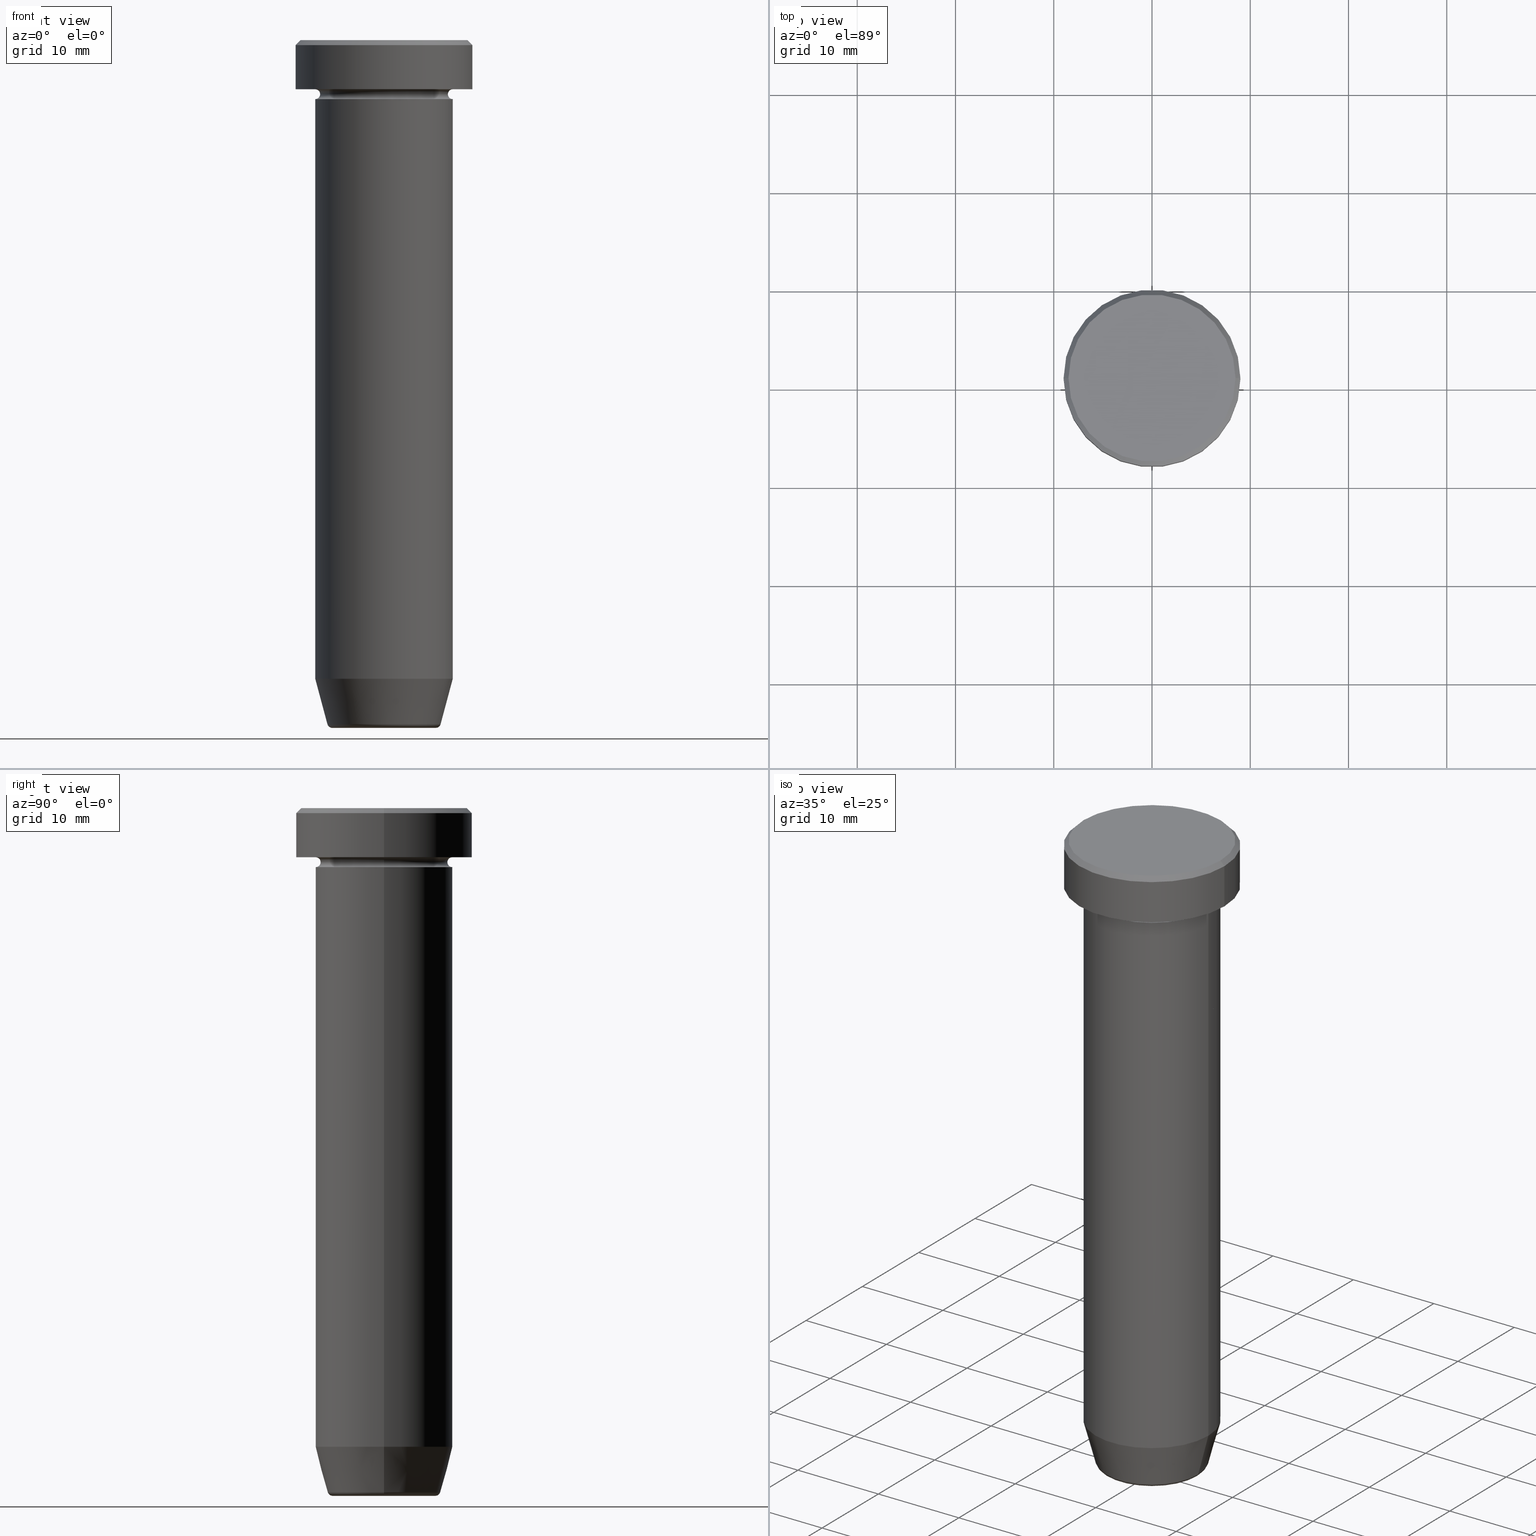
[diagram: canonical four-view strip — front | top / right | iso, engineering-drawing reading convention]
A machine part, canonical four-view strip (front | top / right | iso — engineering-drawing reading convention). The complete STEP part file that produces these views, byte-faithful:
ISO-10303-21;
HEADER;
FILE_DESCRIPTION (( 'STEP AP203' ),
    '1' );
FILE_NAME ('949f.STEP',
    '2024-01-02T23:13:45',
    ( '' ),
    ( '' ),
    'SwSTEP 2.0',
    'SolidWorks 2019',
    '' );
FILE_SCHEMA (( 'CONFIG_CONTROL_DESIGN' ));
ENDSEC;

DATA;
#1 = CIRCLE ( 'NONE', #47, 0.5000000000000004441 ) ;
#2 = COORDINATED_UNIVERSAL_TIME_OFFSET ( 1, 0, .AHEAD. ) ;
#3 = DIRECTION ( 'NONE',  ( -1.000000000000000000, 1.224646799147351482E-16, 0.000000000000000000 ) ) ;
#4 = CIRCLE ( 'NONE', #204, 7.000000000000000000 ) ;
#5 = AXIS2_PLACEMENT_3D ( 'NONE', #580, #203, #309 ) ;
#6 = CALENDAR_DATE ( 2024, 3, 1 ) ;
#7 = CARTESIAN_POINT ( 'NONE',  ( 0.000000000000000000, 0.000000000000000000, 0.000000000000000000 ) ) ;
#8 = DIRECTION ( 'NONE',  ( -1.000000000000000000, 1.224646799147351482E-16, 0.000000000000000000 ) ) ;
#9 = ADVANCED_FACE ( 'NONE', ( #128 ), #116, .F. ) ;
#10 = DIRECTION ( 'NONE',  ( -1.000000000000000000, 0.000000000000000000, 0.000000000000000000 ) ) ;
#11 = EDGE_LOOP ( 'NONE', ( #375, #185 ) ) ;
#12 = FACE_OUTER_BOUND ( 'NONE', #430, .T. ) ;
#13 = FACE_OUTER_BOUND ( 'NONE', #91, .T. ) ;
#14 = FACE_OUTER_BOUND ( 'NONE', #371, .T. ) ;
#15 = EDGE_CURVE ( 'NONE', #255, #281, #354, .T. ) ;
#16 = DIRECTION ( 'NONE',  ( 0.000000000000000000, 0.000000000000000000, -1.000000000000000000 ) ) ;
#17 = ORIENTED_EDGE ( 'NONE', *, *, #154, .F. ) ;
#18 = COORDINATED_UNIVERSAL_TIME_OFFSET ( 1, 0, .AHEAD. ) ;
#19 = TOROIDAL_SURFACE ( 'NONE', #407, 5.276590543854903004, 0.5000000000000000000 ) ;
#20 = DIRECTION ( 'NONE',  ( -0.000000000000000000, -0.000000000000000000, 1.000000000000000000 ) ) ;
#21 = AXIS2_PLACEMENT_3D ( 'NONE', #344, #212, #73 ) ;
#22 = VERTEX_POINT ( 'NONE', #125 ) ;
#23 = DIRECTION ( 'NONE',  ( -0.2588190451025210170, 3.169619151431768639E-17, 0.9659258262890680902 ) ) ;
#24 = PERSON_AND_ORGANIZATION_ROLE ( 'creator' ) ;
#25 = CYLINDRICAL_SURFACE ( 'NONE', #307, 7.000000000000000000 ) ;
#26 = ORIENTED_EDGE ( 'NONE', *, *, #546, .T. ) ;
#27 = FACE_OUTER_BOUND ( 'NONE', #233, .T. ) ;
#28 = CC_DESIGN_PERSON_AND_ORGANIZATION_ASSIGNMENT ( #165, #24, ( #497 ) ) ;
#29 = EDGE_LOOP ( 'NONE', ( #279, #577, #261, #530 ) ) ;
#30 = CARTESIAN_POINT ( 'NONE',  ( 0.000000000000000000, 0.000000000000000000, 0.000000000000000000 ) ) ;
#31 = CIRCLE ( 'NONE', #121, 9.000000000000000000 ) ;
#32 = APPROVAL_PERSON_ORGANIZATION ( #112, #468, #265 ) ;
#33 = ORIENTED_EDGE ( 'NONE', *, *, #262, .T. ) ;
#34 = ORIENTED_EDGE ( 'NONE', *, *, #367, .F. ) ;
#35 = FACE_OUTER_BOUND ( 'NONE', #11, .T. ) ;
#36 = VERTEX_POINT ( 'NONE', #312 ) ;
#37 = VECTOR ( 'NONE', #297, 1000.000000000000114 ) ;
#38 = DIRECTION ( 'NONE',  ( -0.000000000000000000, -0.000000000000000000, 1.000000000000000000 ) ) ;
#39 = VERTEX_POINT ( 'NONE', #586 ) ;
#40 = CARTESIAN_POINT ( 'NONE',  ( 0.000000000000000000, 0.000000000000000000, -69.62940952255127058 ) ) ;
#41 = EDGE_LOOP ( 'NONE', ( #94, #365, #350, #33 ) ) ;
#42 = DIRECTION ( 'NONE',  ( 1.224646799147353207E-16, 1.000000000000000000, 0.000000000000000000 ) ) ;
#43 = ORIENTED_EDGE ( 'NONE', *, *, #538, .T. ) ;
#44 = CC_DESIGN_DATE_AND_TIME_ASSIGNMENT ( #147, #97, ( #340 ) ) ;
#45 = DIRECTION ( 'NONE',  ( 0.000000000000000000, 0.000000000000000000, -1.000000000000000000 ) ) ;
#46 = CIRCLE ( 'NONE', #172, 7.000000000000000000 ) ;
#47 = AXIS2_PLACEMENT_3D ( 'NONE', #269, #141, #226 ) ;
#48 =( NAMED_UNIT ( * ) PLANE_ANGLE_UNIT ( ) SI_UNIT ( $, .RADIAN. ) );
#49 = LINE ( 'NONE', #473, #549 ) ;
#50 = COORDINATED_UNIVERSAL_TIME_OFFSET ( 1, 0, .AHEAD. ) ;
#51 = CARTESIAN_POINT ( 'NONE',  ( 9.000000000000000000, 0.000000000000000000, -0.4999999999999952260 ) ) ;
#52 = CALENDAR_DATE ( 2024, 3, 1 ) ;
#53 = DIRECTION ( 'NONE',  ( -0.000000000000000000, -0.000000000000000000, 1.000000000000000000 ) ) ;
#54 = AXIS2_PLACEMENT_3D ( 'NONE', #192, #566, #150 ) ;
#55 =( LENGTH_UNIT ( ) NAMED_UNIT ( * ) SI_UNIT ( .MILLI., .METRE. ) );
#56 = DIRECTION ( 'NONE',  ( -0.000000000000000000, -0.000000000000000000, 1.000000000000000000 ) ) ;
#57 = PERSON_AND_ORGANIZATION ( #164, #143 ) ;
#58 = LINE ( 'NONE', #484, #463 ) ;
#59 = CARTESIAN_POINT ( 'NONE',  ( 0.000000000000000000, 0.000000000000000000, -65.00000000000000000 ) ) ;
#60 = DIRECTION ( 'NONE',  ( 1.000000000000000000, 0.000000000000000000, 0.000000000000000000 ) ) ;
#61 = DIRECTION ( 'NONE',  ( 1.000000000000000000, 0.000000000000000000, 0.000000000000000000 ) ) ;
#62 = VERTEX_POINT ( 'NONE', #529 ) ;
#63 = PERSON_AND_ORGANIZATION ( #164, #143 ) ;
#64 = DIRECTION ( 'NONE',  ( -0.7071067811865474617, 0.000000000000000000, -0.7071067811865474617 ) ) ;
#65 = TOROIDAL_SURFACE ( 'NONE', #356, 7.000000000000000888, 0.5000000000000000000 ) ;
#66 = ORIENTED_EDGE ( 'NONE', *, *, #188, .F. ) ;
#67 = ORIENTED_EDGE ( 'NONE', *, *, #457, .F. ) ;
#68 = AXIS2_PLACEMENT_3D ( 'NONE', #227, #272, #415 ) ;
#69 = DIRECTION ( 'NONE',  ( 1.000000000000000000, 0.000000000000000000, 0.000000000000000000 ) ) ;
#70 = AXIS2_PLACEMENT_3D ( 'NONE', #230, #321, #299 ) ;
#71 = ORIENTED_EDGE ( 'NONE', *, *, #191, .T. ) ;
#72 = LOCAL_TIME ( 0, 13, 45.00000000000000000, #397 ) ;
#73 = DIRECTION ( 'NONE',  ( 1.000000000000000000, 0.000000000000000000, 0.000000000000000000 ) ) ;
#74 = CARTESIAN_POINT ( 'NONE',  ( -5.276590543854903004, 6.461959719943098517E-16, -69.50000000000000000 ) ) ;
#75 = ORIENTED_EDGE ( 'NONE', *, *, #131, .T. ) ;
#76 = DESIGN_CONTEXT ( 'detailed design', #263, 'design' ) ;
#77 = ADVANCED_FACE ( 'NONE', ( #493 ), #65, .F. ) ;
#78 = MANIFOLD_SOLID_BREP ( 'Zaoblit4', #300 ) ;
#79 = CARTESIAN_POINT ( 'NONE',  ( 7.000000000000000000, 0.000000000000000000, -17.50000000000000000 ) ) ;
#80 = EDGE_LOOP ( 'NONE', ( #138, #168, #75, #86 ) ) ;
#81 = DIRECTION ( 'NONE',  ( 1.000000000000000000, 0.000000000000000000, 0.000000000000000000 ) ) ;
#82 = EDGE_CURVE ( 'NONE', #464, #324, #521, .T. ) ;
#83 = TOROIDAL_SURFACE ( 'NONE', #448, 7.000000000000000888, 0.5000000000000000000 ) ;
#84 = CC_DESIGN_DATE_AND_TIME_ASSIGNMENT ( #392, #254, ( #550 ) ) ;
#85 = DIRECTION ( 'NONE',  ( -0.000000000000000000, -0.000000000000000000, 1.000000000000000000 ) ) ;
#86 = ORIENTED_EDGE ( 'NONE', *, *, #239, .F. ) ;
#87 = CARTESIAN_POINT ( 'NONE',  ( 7.000000000000000000, 0.000000000000000000, 0.000000000000000000 ) ) ;
#88 = LINE ( 'NONE', #256, #181 ) ;
#89 = DIRECTION ( 'NONE',  ( -0.000000000000000000, -0.000000000000000000, 1.000000000000000000 ) ) ;
#90 = DIRECTION ( 'NONE',  ( -0.000000000000000000, -0.000000000000000000, 1.000000000000000000 ) ) ;
#91 = EDGE_LOOP ( 'NONE', ( #357, #353 ) ) ;
#92 = DIRECTION ( 'NONE',  ( 0.000000000000000000, 0.000000000000000000, -1.000000000000000000 ) ) ;
#93 = CARTESIAN_POINT ( 'NONE',  ( 8.500000000000003553, 1.071565949253934321E-15, 0.000000000000000000 ) ) ;
#94 = ORIENTED_EDGE ( 'NONE', *, *, #420, .F. ) ;
#95 = AXIS2_PLACEMENT_3D ( 'NONE', #251, #56, #245 ) ;
#96 = EDGE_LOOP ( 'NONE', ( #411, #378 ) ) ;
#97 = DATE_TIME_ROLE ( 'creation_date' ) ;
#98 = AXIS2_PLACEMENT_3D ( 'NONE', #542, #313, #494 ) ;
#99 = CARTESIAN_POINT ( 'NONE',  ( 8.500000000000003553, 1.040949779275250731E-15, 0.000000000000000000 ) ) ;
#100 = CARTESIAN_POINT ( 'NONE',  ( -7.000000000000000000, 8.572527594031473190E-16, -17.50000000000000000 ) ) ;
#101 = EDGE_CURVE ( 'NONE', #555, #22, #113, .T. ) ;
#102 = MECHANICAL_CONTEXT ( 'NONE', #286, 'mechanical' ) ;
#103 = FACE_OUTER_BOUND ( 'NONE', #169, .T. ) ;
#104 = EDGE_CURVE ( 'NONE', #555, #370, #260, .T. ) ;
#105 = DIRECTION ( 'NONE',  ( -0.000000000000000000, -0.000000000000000000, 1.000000000000000000 ) ) ;
#106 = DIRECTION ( 'NONE',  ( 0.7071067811865474617, 8.659560562354932858E-17, -0.7071067811865474617 ) ) ;
#107 = CIRCLE ( 'NONE', #342, 7.000000000000000000 ) ;
#108 = CIRCLE ( 'NONE', #189, 0.5000000000000004441 ) ;
#109 = PERSON_AND_ORGANIZATION ( #164, #143 ) ;
#110 = DIRECTION ( 'NONE',  ( 1.000000000000000000, 0.000000000000000000, 0.000000000000000000 ) ) ;
#111 = ORIENTED_EDGE ( 'NONE', *, *, #538, .F. ) ;
#112 = PERSON_AND_ORGANIZATION ( #164, #143 ) ;
#113 = LINE ( 'NONE', #588, #37 ) ;
#114 = SECURITY_CLASSIFICATION_LEVEL ( 'unclassified' ) ;
#115 = CARTESIAN_POINT ( 'NONE',  ( -5.759553456999434218, 7.812973149831952759E-16, -69.62940952255127058 ) ) ;
#116 = PLANE ( 'NONE',  #186 ) ;
#117 = CYLINDRICAL_SURFACE ( 'NONE', #496, 7.000000000000000000 ) ;
#118 = ORIENTED_EDGE ( 'NONE', *, *, #216, .T. ) ;
#119 = PRODUCT ( '949f', '949f', '', ( #102 ) ) ;
#120 = CARTESIAN_POINT ( 'NONE',  ( 0.000000000000000000, 0.000000000000000000, 0.000000000000000000 ) ) ;
#121 = AXIS2_PLACEMENT_3D ( 'NONE', #552, #466, #134 ) ;
#122 = ORIENTED_EDGE ( 'NONE', *, *, #104, .T. ) ;
#123 = LOCAL_TIME ( 0, 13, 45.00000000000000000, #50 ) ;
#124 = FACE_OUTER_BOUND ( 'NONE', #396, .T. ) ;
#125 = CARTESIAN_POINT ( 'NONE',  ( 7.000000000000000000, 0.000000000000000000, -65.00000000000000000 ) ) ;
#126 = PERSON_AND_ORGANIZATION_ROLE ( 'classification_officer' ) ;
#127 = CC_DESIGN_PERSON_AND_ORGANIZATION_ASSIGNMENT ( #63, #358, ( #497 ) ) ;
#128 = FACE_OUTER_BOUND ( 'NONE', #271, .T. ) ;
#129 = CARTESIAN_POINT ( 'NONE',  ( 0.000000000000000000, 0.000000000000000000, 0.000000000000000000 ) ) ;
#130 = ORIENTED_EDGE ( 'NONE', *, *, #137, .F. ) ;
#131 = EDGE_CURVE ( 'NONE', #424, #347, #512, .T. ) ;
#132 = AXIS2_PLACEMENT_3D ( 'NONE', #519, #53, #243 ) ;
#133 = ORIENTED_EDGE ( 'NONE', *, *, #188, .T. ) ;
#134 = DIRECTION ( 'NONE',  ( 1.000000000000000000, 0.000000000000000000, 0.000000000000000000 ) ) ;
#135 = ADVANCED_FACE ( 'NONE', ( #323 ), #333, .T. ) ;
#136 = CARTESIAN_POINT ( 'NONE',  ( 0.000000000000000000, 0.000000000000000000, -69.62940952255127058 ) ) ;
#137 = EDGE_CURVE ( 'NONE', #330, #36, #589, .T. ) ;
#138 = ORIENTED_EDGE ( 'NONE', *, *, #304, .F. ) ;
#139 = ADVANCED_FACE ( 'NONE', ( #320 ), #587, .T. ) ;
#140 = EDGE_LOOP ( 'NONE', ( #535, #133, #509, #384 ) ) ;
#141 = DIRECTION ( 'NONE',  ( 0.000000000000000000, -1.000000000000000000, 0.000000000000000000 ) ) ;
#142 = CIRCLE ( 'NONE', #438, 8.500000000000003553 ) ;
#143 = ORGANIZATION ( 'NEUR�EN�', 'NEUR�EN�', '' ) ;
#144 = ADVANCED_FACE ( 'NONE', ( #35 ), #500, .T. ) ;
#145 = FACE_OUTER_BOUND ( 'NONE', #485, .T. ) ;
#146 = CARTESIAN_POINT ( 'NONE',  ( 0.000000000000000000, 0.000000000000000000, -6.000000000000000000 ) ) ;
#147 = DATE_AND_TIME ( #562, #388 ) ;
#148 = CIRCLE ( 'NONE', #305, 5.759553456999434218 ) ;
#149 = CIRCLE ( 'NONE', #527, 7.000000000000000000 ) ;
#150 = DIRECTION ( 'NONE',  ( 1.000000000000000000, 0.000000000000000000, 0.000000000000000000 ) ) ;
#151 = CARTESIAN_POINT ( 'NONE',  ( -7.000000000000000888, 8.572527594031474176E-16, -5.500000000000000000 ) ) ;
#152 = APPROVAL_DATE_TIME ( #567, #235 ) ;
#153 = DIRECTION ( 'NONE',  ( 1.000000000000000000, 0.000000000000000000, 0.000000000000000000 ) ) ;
#154 = EDGE_CURVE ( 'NONE', #22, #573, #361, .T. ) ;
#155 = EDGE_CURVE ( 'NONE', #62, #180, #107, .T. ) ;
#156 = DIRECTION ( 'NONE',  ( -1.000000000000000000, 0.000000000000000000, 0.000000000000000000 ) ) ;
#157 = CARTESIAN_POINT ( 'NONE',  ( 6.500000000000000888, 0.000000000000000000, -5.500000000000000000 ) ) ;
#158 = DIRECTION ( 'NONE',  ( -0.000000000000000000, -0.000000000000000000, 1.000000000000000000 ) ) ;
#159 = CIRCLE ( 'NONE', #469, 6.500000000000000888 ) ;
#160 = AXIS2_PLACEMENT_3D ( 'NONE', #482, #523, #60 ) ;
#161 = EDGE_CURVE ( 'NONE', #596, #504, #159, .T. ) ;
#162 = EDGE_LOOP ( 'NONE', ( #467, #495, #202, #34 ) ) ;
#163 = CARTESIAN_POINT ( 'NONE',  ( 7.000000000000000000, 0.000000000000000000, -6.000000000000000000 ) ) ;
#164 = PERSON ( 'NEUR�EN�', 'NEUR�EN�', 'NEUR�EN�', ('NEUR�EN�'), ('NEUR�EN�'), ('NEUR�EN�') ) ;
#165 = PERSON_AND_ORGANIZATION ( #164, #143 ) ;
#166 = CARTESIAN_POINT ( 'NONE',  ( 0.000000000000000000, 0.000000000000000000, 0.000000000000000000 ) ) ;
#167 = CC_DESIGN_PERSON_AND_ORGANIZATION_ASSIGNMENT ( #109, #520, ( #119 ) ) ;
#168 = ORIENTED_EDGE ( 'NONE', *, *, #420, .T. ) ;
#169 = EDGE_LOOP ( 'NONE', ( #426, #178, #328, #489 ) ) ;
#170 = ORIENTED_EDGE ( 'NONE', *, *, #348, .F. ) ;
#171 = CARTESIAN_POINT ( 'NONE',  ( 0.000000000000000000, 0.000000000000000000, -5.500000000000000000 ) ) ;
#172 = AXIS2_PLACEMENT_3D ( 'NONE', #146, #334, #285 ) ;
#173 = DIRECTION ( 'NONE',  ( -0.000000000000000000, -0.000000000000000000, 1.000000000000000000 ) ) ;
#174 = ORIENTED_EDGE ( 'NONE', *, *, #268, .F. ) ;
#175 = CARTESIAN_POINT ( 'NONE',  ( 7.000000000000000888, 8.572527594031474176E-16, -5.500000000000000000 ) ) ;
#176 = CARTESIAN_POINT ( 'NONE',  ( 0.000000000000000000, 0.000000000000000000, -17.50000000000000000 ) ) ;
#177 = DIRECTION ( 'NONE',  ( 1.000000000000000000, 0.000000000000000000, 0.000000000000000000 ) ) ;
#178 = ORIENTED_EDGE ( 'NONE', *, *, #383, .T. ) ;
#179 = DIRECTION ( 'NONE',  ( -0.000000000000000000, -0.000000000000000000, 1.000000000000000000 ) ) ;
#180 = VERTEX_POINT ( 'NONE', #79 ) ;
#181 = VECTOR ( 'NONE', #23, 1000.000000000000114 ) ;
#182 = DIRECTION ( 'NONE',  ( 0.000000000000000000, 0.000000000000000000, -1.000000000000000000 ) ) ;
#183 = ORIENTED_EDGE ( 'NONE', *, *, #216, .F. ) ;
#184 = DIRECTION ( 'NONE',  ( -1.000000000000000000, 0.000000000000000000, 0.000000000000000000 ) ) ;
#185 = ORIENTED_EDGE ( 'NONE', *, *, #155, .F. ) ;
#186 = AXIS2_PLACEMENT_3D ( 'NONE', #215, #582, #81 ) ;
#187 = CARTESIAN_POINT ( 'NONE',  ( 0.000000000000000000, 9.000000000000000000, -5.000000000000000000 ) ) ;
#188 = EDGE_CURVE ( 'NONE', #596, #330, #564, .T. ) ;
#189 = AXIS2_PLACEMENT_3D ( 'NONE', #151, #42, #3 ) ;
#190 = APPROVAL ( #385, 'NEUR�EN�' ) ;
#191 = EDGE_CURVE ( 'NONE', #422, #39, #373, .T. ) ;
#192 = CARTESIAN_POINT ( 'NONE',  ( 0.000000000000000000, 0.000000000000000000, 0.000000000000000000 ) ) ;
#193 = CIRCLE ( 'NONE', #393, 8.500000000000003553 ) ;
#194 = CONICAL_SURFACE ( 'NONE', #132, 5.660254037844383745, 0.2617993877991497409 ) ;
#195 = CC_DESIGN_APPROVAL ( #468, ( #550 ) ) ;
#196 =( NAMED_UNIT ( * ) SI_UNIT ( $, .STERADIAN. ) SOLID_ANGLE_UNIT ( ) );
#197 = CARTESIAN_POINT ( 'NONE',  ( 0.000000000000000000, 0.000000000000000000, 0.000000000000000000 ) ) ;
#198 = CARTESIAN_POINT ( 'NONE',  ( -7.000000000000000000, 8.572527594031473190E-16, -65.00000000000000000 ) ) ;
#199 = DIRECTION ( 'NONE',  ( 0.000000000000000000, -0.000000000000000000, 1.000000000000000000 ) ) ;
#200 = FACE_OUTER_BOUND ( 'NONE', #461, .T. ) ;
#201 = AXIS2_PLACEMENT_3D ( 'NONE', #176, #224, #412 ) ;
#202 = ORIENTED_EDGE ( 'NONE', *, *, #262, .F. ) ;
#203 = DIRECTION ( 'NONE',  ( 0.000000000000000000, 0.000000000000000000, -1.000000000000000000 ) ) ;
#204 = AXIS2_PLACEMENT_3D ( 'NONE', #59, #568, #153 ) ;
#205 = AXIS2_PLACEMENT_3D ( 'NONE', #475, #105, #61 ) ;
#206 = PRODUCT_RELATED_PRODUCT_CATEGORY ( 'detail', '', ( #119 ) ) ;
#207 = ORIENTED_EDGE ( 'NONE', *, *, #161, .T. ) ;
#208 = FACE_OUTER_BOUND ( 'NONE', #162, .T. ) ;
#209 = ORIENTED_EDGE ( 'NONE', *, *, #82, .F. ) ;
#210 = CARTESIAN_POINT ( 'NONE',  ( 0.000000000000000000, 0.000000000000000000, -5.500000000000000000 ) ) ;
#211 = FACE_OUTER_BOUND ( 'NONE', #214, .T. ) ;
#212 = DIRECTION ( 'NONE',  ( 0.000000000000000000, 0.000000000000000000, -1.000000000000000000 ) ) ;
#213 = DIRECTION ( 'NONE',  ( -0.000000000000000000, -0.000000000000000000, 1.000000000000000000 ) ) ;
#214 = EDGE_LOOP ( 'NONE', ( #170, #310, #43, #26 ) ) ;
#215 = CARTESIAN_POINT ( 'NONE',  ( 0.000000000000000000, 2.449293598294707302E-15, -70.00000000000000000 ) ) ;
#216 = EDGE_CURVE ( 'NONE', #399, #301, #193, .T. ) ;
#217 = FACE_BOUND ( 'NONE', #96, .T. ) ;
#218 = CALENDAR_DATE ( 2024, 3, 1 ) ;
#219 = VECTOR ( 'NONE', #173, 1000.000000000000000 ) ;
#220 = DIRECTION ( 'NONE',  ( -0.000000000000000000, -0.000000000000000000, 1.000000000000000000 ) ) ;
#221 = CC_DESIGN_PERSON_AND_ORGANIZATION_ASSIGNMENT ( #576, #126, ( #550 ) ) ;
#222 = CARTESIAN_POINT ( 'NONE',  ( 0.000000000000000000, 7.000000000000000000, -17.50000000000000000 ) ) ;
#223 = CARTESIAN_POINT ( 'NONE',  ( 9.000000000000000000, 0.000000000000000000, 0.000000000000000000 ) ) ;
#224 = DIRECTION ( 'NONE',  ( -0.000000000000000000, -0.000000000000000000, 1.000000000000000000 ) ) ;
#225 = DIRECTION ( 'NONE',  ( -0.000000000000000000, -0.000000000000000000, 1.000000000000000000 ) ) ;
#226 = DIRECTION ( 'NONE',  ( 0.000000000000000000, 0.000000000000000000, -1.000000000000000000 ) ) ;
#227 = CARTESIAN_POINT ( 'NONE',  ( 0.000000000000000000, 0.000000000000000000, -5.500000000000000000 ) ) ;
#228 = ORIENTED_EDGE ( 'NONE', *, *, #314, .T. ) ;
#229 = VECTOR ( 'NONE', #525, 1000.000000000000000 ) ;
#230 = CARTESIAN_POINT ( 'NONE',  ( 0.000000000000000000, 0.000000000000000000, 0.000000000000000000 ) ) ;
#231 = APPROVAL_PERSON_ORGANIZATION ( #436, #235, #471 ) ;
#232 = CARTESIAN_POINT ( 'NONE',  ( 0.000000000000000000, 0.000000000000000000, -5.500000000000000000 ) ) ;
#233 = EDGE_LOOP ( 'NONE', ( #551, #303, #502, #547 ) ) ;
#234 = AXIS2_PLACEMENT_3D ( 'NONE', #592, #38, #372 ) ;
#235 = APPROVAL ( #282, 'NEUR�EN�' ) ;
#236 = AXIS2_PLACEMENT_3D ( 'NONE', #175, #454, #369 ) ;
#237 = CONICAL_SURFACE ( 'NONE', #387, 8.500000000000003553, 0.7853981633974482790 ) ;
#238 = ADVANCED_FACE ( 'NONE', ( #584 ), #548, .F. ) ;
#239 = EDGE_CURVE ( 'NONE', #596, #347, #437, .T. ) ;
#240 = CARTESIAN_POINT ( 'NONE',  ( 5.759553456999434218, 0.000000000000000000, -69.62940952255127058 ) ) ;
#241 = PERSON_AND_ORGANIZATION_ROLE ( 'creator' ) ;
#242 = AXIS2_PLACEMENT_3D ( 'NONE', #74, #339, #8 ) ;
#243 = DIRECTION ( 'NONE',  ( 1.000000000000000000, 0.000000000000000000, 0.000000000000000000 ) ) ;
#244 = LINE ( 'NONE', #99, #565 ) ;
#245 = DIRECTION ( 'NONE',  ( -1.000000000000000000, 0.000000000000000000, 0.000000000000000000 ) ) ;
#246 = EDGE_CURVE ( 'NONE', #370, #555, #148, .T. ) ;
#247 = CARTESIAN_POINT ( 'NONE',  ( 0.000000000000000000, 0.000000000000000000, -69.50000000000000000 ) ) ;
#248 = DIRECTION ( 'NONE',  ( -0.000000000000000000, -0.000000000000000000, 1.000000000000000000 ) ) ;
#249 = APPROVAL_DATE_TIME ( #433, #190 ) ;
#250 = CARTESIAN_POINT ( 'NONE',  ( 0.000000000000000000, 0.000000000000000000, -17.50000000000000000 ) ) ;
#251 = CARTESIAN_POINT ( 'NONE',  ( 0.000000000000000000, 0.000000000000000000, -5.000000000000000000 ) ) ;
#252 = CARTESIAN_POINT ( 'NONE',  ( -7.000000000000000888, 0.000000000000000000, -5.500000000000000000 ) ) ;
#253 = DIRECTION ( 'NONE',  ( -0.000000000000000000, -0.000000000000000000, 1.000000000000000000 ) ) ;
#254 = DATE_TIME_ROLE ( 'classification_date' ) ;
#255 = VERTEX_POINT ( 'NONE', #505 ) ;
#256 = CARTESIAN_POINT ( 'NONE',  ( -5.660254037844383745, 6.931811989807006322E-16, -70.00000000000000000 ) ) ;
#257 = ORIENTED_EDGE ( 'NONE', *, *, #131, .F. ) ;
#258 = CYLINDRICAL_SURFACE ( 'NONE', #380, 7.000000000000000000 ) ;
#259 = ADVANCED_FACE ( 'NONE', ( #217, #145 ), #331, .T. ) ;
#260 = CIRCLE ( 'NONE', #425, 5.759553456999434218 ) ;
#261 = ORIENTED_EDGE ( 'NONE', *, *, #326, .T. ) ;
#262 = EDGE_CURVE ( 'NONE', #347, #424, #46, .T. ) ;
#263 = APPLICATION_CONTEXT ( 'configuration controlled 3d designs of mechanical parts and assemblies' ) ;
#264 = DIRECTION ( 'NONE',  ( 1.000000000000000000, 0.000000000000000000, 0.000000000000000000 ) ) ;
#265 = APPROVAL_ROLE ( '' ) ;
#266 = CIRCLE ( 'NONE', #507, 6.500000000000000888 ) ;
#267 = DIRECTION ( 'NONE',  ( -1.000000000000000000, 0.000000000000000000, 0.000000000000000000 ) ) ;
#268 = EDGE_CURVE ( 'NONE', #573, #22, #4, .T. ) ;
#269 = CARTESIAN_POINT ( 'NONE',  ( 5.276590543854903004, 0.000000000000000000, -69.50000000000000000 ) ) ;
#270 = CARTESIAN_POINT ( 'NONE',  ( 7.000000000000000888, 0.000000000000000000, -5.500000000000000000 ) ) ;
#271 = EDGE_LOOP ( 'NONE', ( #71, #594 ) ) ;
#272 = DIRECTION ( 'NONE',  ( -0.000000000000000000, -0.000000000000000000, 1.000000000000000000 ) ) ;
#273 = MANIFOLD_SOLID_BREP ( 'Zkosen�1', #288 ) ;
#274 = AXIS2_PLACEMENT_3D ( 'NONE', #187, #45, #431 ) ;
#275 = CIRCLE ( 'NONE', #417, 9.000000000000000000 ) ;
#276 = ORIENTED_EDGE ( 'NONE', *, *, #191, .F. ) ;
#277 = VECTOR ( 'NONE', #503, 1000.000000000000000 ) ;
#278 = ORIENTED_EDGE ( 'NONE', *, *, #418, .F. ) ;
#279 = ORIENTED_EDGE ( 'NONE', *, *, #572, .F. ) ;
#280 = DIRECTION ( 'NONE',  ( -0.000000000000000000, -0.000000000000000000, 1.000000000000000000 ) ) ;
#281 = VERTEX_POINT ( 'NONE', #522 ) ;
#282 = APPROVAL_STATUS ( 'not_yet_approved' ) ;
#283 = CIRCLE ( 'NONE', #95, 7.000000000000000888 ) ;
#284 = CIRCLE ( 'NONE', #21, 5.276590543854903004 ) ;
#285 = DIRECTION ( 'NONE',  ( 1.000000000000000000, 0.000000000000000000, 0.000000000000000000 ) ) ;
#286 = APPLICATION_CONTEXT ( 'configuration controlled 3d designs of mechanical parts and assemblies' ) ;
#287 = APPLICATION_PROTOCOL_DEFINITION ( 'international standard', 'config_control_design', 1994, #263 ) ;
#288 = CLOSED_SHELL ( 'NONE', ( #135, #77, #238, #338, #139, #144, #296, #517, #259, #563, #389, #306, #434 ) ) ;
#289 = CARTESIAN_POINT ( 'NONE',  ( -7.000000000000000000, 8.572527594031473190E-16, 0.000000000000000000 ) ) ;
#290 = EDGE_CURVE ( 'NONE', #36, #330, #283, .T. ) ;
#291 = AXIS2_PLACEMENT_3D ( 'NONE', #222, #182, #413 ) ;
#292 = TOROIDAL_SURFACE ( 'NONE', #343, 7.000000000000000888, 0.5000000000000000000 ) ;
#293 = DIRECTION ( 'NONE',  ( 1.000000000000000000, 0.000000000000000000, 0.000000000000000000 ) ) ;
#294 = CYLINDRICAL_SURFACE ( 'NONE', #537, 7.000000000000000000 ) ;
#295 = LINE ( 'NONE', #526, #429 ) ;
#296 = ADVANCED_FACE ( 'NONE', ( #14 ), #391, .T. ) ;
#297 = DIRECTION ( 'NONE',  ( 0.2588190451025210170, 0.000000000000000000, 0.9659258262890680902 ) ) ;
#298 = ADVANCED_FACE ( 'NONE', ( #103 ), #19, .T. ) ;
#299 = DIRECTION ( 'NONE',  ( 1.000000000000000000, 0.000000000000000000, 0.000000000000000000 ) ) ;
#300 = CLOSED_SHELL ( 'NONE', ( #298, #450, #322, #382, #432, #442, #9, #319 ) ) ;
#301 = VERTEX_POINT ( 'NONE', #400 ) ;
#302 = CARTESIAN_POINT ( 'NONE',  ( -9.000000000000000000, 1.102182119232617714E-15, -0.4999999999999952260 ) ) ;
#303 = ORIENTED_EDGE ( 'NONE', *, *, #457, .T. ) ;
#304 = EDGE_CURVE ( 'NONE', #504, #596, #266, .T. ) ;
#305 = AXIS2_PLACEMENT_3D ( 'NONE', #40, #421, #595 ) ;
#306 = ADVANCED_FACE ( 'NONE', ( #124 ), #292, .F. ) ;
#307 = AXIS2_PLACEMENT_3D ( 'NONE', #120, #539, #110 ) ;
#308 = FACE_OUTER_BOUND ( 'NONE', #458, .T. ) ;
#309 = DIRECTION ( 'NONE',  ( -1.000000000000000000, 0.000000000000000000, -0.000000000000000000 ) ) ;
#310 = ORIENTED_EDGE ( 'NONE', *, *, #15, .T. ) ;
#311 = CARTESIAN_POINT ( 'NONE',  ( 0.000000000000000000, 0.000000000000000000, -5.500000000000000000 ) ) ;
#312 = CARTESIAN_POINT ( 'NONE',  ( -7.000000000000000888, 0.000000000000000000, -4.999999999999999112 ) ) ;
#313 = DIRECTION ( 'NONE',  ( -0.000000000000000000, -0.000000000000000000, 1.000000000000000000 ) ) ;
#314 = EDGE_CURVE ( 'NONE', #377, #487, #336, .T. ) ;
#315 = DIRECTION ( 'NONE',  ( 1.000000000000000000, 0.000000000000000000, 0.000000000000000000 ) ) ;
#316 = DIRECTION ( 'NONE',  ( 1.000000000000000000, 0.000000000000000000, 0.000000000000000000 ) ) ;
#317 = AXIS2_PLACEMENT_3D ( 'NONE', #590, #92, #545 ) ;
#318 = AXIS2_PLACEMENT_3D ( 'NONE', #394, #213, #401 ) ;
#319 = ADVANCED_FACE ( 'NONE', ( #200 ), #560, .T. ) ;
#320 = FACE_OUTER_BOUND ( 'NONE', #379, .T. ) ;
#321 = DIRECTION ( 'NONE',  ( -0.000000000000000000, -0.000000000000000000, 1.000000000000000000 ) ) ;
#322 = ADVANCED_FACE ( 'NONE', ( #27 ), #258, .T. ) ;
#323 = FACE_OUTER_BOUND ( 'NONE', #541, .T. ) ;
#324 = VERTEX_POINT ( 'NONE', #446 ) ;
#325 = CARTESIAN_POINT ( 'NONE',  ( 0.000000000000000000, 0.000000000000000000, -17.50000000000000000 ) ) ;
#326 = EDGE_CURVE ( 'NONE', #301, #377, #295, .T. ) ;
#327 = CIRCLE ( 'NONE', #318, 7.000000000000000000 ) ;
#328 = ORIENTED_EDGE ( 'NONE', *, *, #104, .F. ) ;
#329 = CARTESIAN_POINT ( 'NONE',  ( 5.276590543854903004, 0.000000000000000000, -70.00000000000000000 ) ) ;
#330 = VERTEX_POINT ( 'NONE', #403 ) ;
#331 = PLANE ( 'NONE',  #274 ) ;
#332 = ORIENTED_EDGE ( 'NONE', *, *, #314, .F. ) ;
#333 = CONICAL_SURFACE ( 'NONE', #486, 8.500000000000003553, 0.7853981633974482790 ) ;
#334 = DIRECTION ( 'NONE',  ( -0.000000000000000000, -0.000000000000000000, 1.000000000000000000 ) ) ;
#335 = AXIS2_PLACEMENT_3D ( 'NONE', #270, #451, #462 ) ;
#336 = CIRCLE ( 'NONE', #160, 9.000000000000000000 ) ;
#337 = CC_DESIGN_APPROVAL ( #235, ( #497 ) ) ;
#338 = ADVANCED_FACE ( 'NONE', ( #208 ), #25, .T. ) ;
#339 = DIRECTION ( 'NONE',  ( 1.224646799147353207E-16, 1.000000000000000000, 0.000000000000000000 ) ) ;
#340 = PRODUCT_DEFINITION ( 'NEZN�M�', '', #497, #76 ) ;
#341 = DIRECTION ( 'NONE',  ( -0.000000000000000000, -0.000000000000000000, 1.000000000000000000 ) ) ;
#342 = AXIS2_PLACEMENT_3D ( 'NONE', #325, #405, #177 ) ;
#343 = AXIS2_PLACEMENT_3D ( 'NONE', #311, #492, #10 ) ;
#344 = CARTESIAN_POINT ( 'NONE',  ( 0.000000000000000000, 0.000000000000000000, -70.00000000000000000 ) ) ;
#345 = CC_DESIGN_SECURITY_CLASSIFICATION ( #550, ( #497 ) ) ;
#346 = FACE_OUTER_BOUND ( 'NONE', #29, .T. ) ;
#347 = VERTEX_POINT ( 'NONE', #163 ) ;
#348 = EDGE_CURVE ( 'NONE', #255, #377, #58, .T. ) ;
#349 = DIRECTION ( 'NONE',  ( -0.000000000000000000, -1.000000000000000000, -0.000000000000000000 ) ) ;
#350 = ORIENTED_EDGE ( 'NONE', *, *, #239, .T. ) ;
#351 = DATE_AND_TIME ( #579, #419 ) ;
#352 = DIRECTION ( 'NONE',  ( 1.000000000000000000, 0.000000000000000000, 0.000000000000000000 ) ) ;
#353 = ORIENTED_EDGE ( 'NONE', *, *, #82, .T. ) ;
#354 = CIRCLE ( 'NONE', #598, 9.000000000000000000 ) ;
#355 = DIRECTION ( 'NONE',  ( 1.000000000000000000, 0.000000000000000000, 0.000000000000000000 ) ) ;
#356 = AXIS2_PLACEMENT_3D ( 'NONE', #368, #544, #267 ) ;
#357 = ORIENTED_EDGE ( 'NONE', *, *, #381, .T. ) ;
#358 = PERSON_AND_ORGANIZATION_ROLE ( 'design_supplier' ) ;
#359 = DIRECTION ( 'NONE',  ( 1.000000000000000000, 0.000000000000000000, 0.000000000000000000 ) ) ;
#360 = ORIENTED_EDGE ( 'NONE', *, *, #569, .F. ) ;
#361 = CIRCLE ( 'NONE', #98, 7.000000000000000000 ) ;
#362 = VECTOR ( 'NONE', #90, 1000.000000000000000 ) ;
#363 = CC_DESIGN_APPROVAL ( #190, ( #340 ) ) ;
#364 = DIRECTION ( 'NONE',  ( -0.000000000000000000, -0.000000000000000000, 1.000000000000000000 ) ) ;
#365 = ORIENTED_EDGE ( 'NONE', *, *, #161, .F. ) ;
#366 = DIRECTION ( 'NONE',  ( -1.000000000000000000, 0.000000000000000000, 0.000000000000000000 ) ) ;
#367 = EDGE_CURVE ( 'NONE', #180, #347, #581, .T. ) ;
#368 = CARTESIAN_POINT ( 'NONE',  ( 0.000000000000000000, 0.000000000000000000, -5.500000000000000000 ) ) ;
#369 = DIRECTION ( 'NONE',  ( -1.000000000000000000, -1.224646799147351482E-16, 0.000000000000000000 ) ) ;
#370 = VERTEX_POINT ( 'NONE', #115 ) ;
#371 = EDGE_LOOP ( 'NONE', ( #599, #118 ) ) ;
#372 = DIRECTION ( 'NONE',  ( 1.000000000000000000, 0.000000000000000000, 0.000000000000000000 ) ) ;
#373 = CIRCLE ( 'NONE', #317, 5.276590543854903004 ) ;
#374 = AXIS2_PLACEMENT_3D ( 'NONE', #398, #20, #359 ) ;
#375 = ORIENTED_EDGE ( 'NONE', *, *, #440, .F. ) ;
#376 = DIRECTION ( 'NONE',  ( 1.000000000000000000, 0.000000000000000000, 0.000000000000000000 ) ) ;
#377 = VERTEX_POINT ( 'NONE', #302 ) ;
#378 = ORIENTED_EDGE ( 'NONE', *, *, #137, .T. ) ;
#379 = EDGE_LOOP ( 'NONE', ( #456, #553, #228, #111 ) ) ;
#380 = AXIS2_PLACEMENT_3D ( 'NONE', #166, #341, #352 ) ;
#381 = EDGE_CURVE ( 'NONE', #324, #464, #149, .T. ) ;
#382 = ADVANCED_FACE ( 'NONE', ( #13 ), #574, .F. ) ;
#383 = EDGE_CURVE ( 'NONE', #39, #370, #455, .T. ) ;
#384 = ORIENTED_EDGE ( 'NONE', *, *, #501, .F. ) ;
#385 = APPROVAL_STATUS ( 'not_yet_approved' ) ;
#386 = DIRECTION ( 'NONE',  ( 0.000000000000000000, 0.000000000000000000, -1.000000000000000000 ) ) ;
#387 = AXIS2_PLACEMENT_3D ( 'NONE', #570, #16, #156 ) ;
#388 = LOCAL_TIME ( 0, 13, 45.00000000000000000, #2 ) ;
#389 = ADVANCED_FACE ( 'NONE', ( #490 ), #83, .F. ) ;
#390 = LINE ( 'NONE', #87, #277 ) ;
#391 = PLANE ( 'NONE',  #506 ) ;
#392 = DATE_AND_TIME ( #218, #72 ) ;
#393 = AXIS2_PLACEMENT_3D ( 'NONE', #129, #179, #376 ) ;
#394 = CARTESIAN_POINT ( 'NONE',  ( 0.000000000000000000, 0.000000000000000000, -17.50000000000000000 ) ) ;
#395 = EDGE_CURVE ( 'NONE', #22, #324, #390, .T. ) ;
#396 = EDGE_LOOP ( 'NONE', ( #66, #207, #402, #130 ) ) ;
#397 = COORDINATED_UNIVERSAL_TIME_OFFSET ( 1, 0, .AHEAD. ) ;
#398 = CARTESIAN_POINT ( 'NONE',  ( 0.000000000000000000, 0.000000000000000000, -69.50000000000000000 ) ) ;
#399 = VERTEX_POINT ( 'NONE', #93 ) ;
#400 = CARTESIAN_POINT ( 'NONE',  ( -8.500000000000003553, 0.000000000000000000, 0.000000000000000000 ) ) ;
#401 = DIRECTION ( 'NONE',  ( 1.000000000000000000, 0.000000000000000000, 0.000000000000000000 ) ) ;
#402 = ORIENTED_EDGE ( 'NONE', *, *, #501, .T. ) ;
#403 = CARTESIAN_POINT ( 'NONE',  ( 7.000000000000000888, 8.572527594031474176E-16, -4.999999999999999112 ) ) ;
#404 = ORIENTED_EDGE ( 'NONE', *, *, #326, .F. ) ;
#405 = DIRECTION ( 'NONE',  ( -0.000000000000000000, -0.000000000000000000, 1.000000000000000000 ) ) ;
#406 = EDGE_CURVE ( 'NONE', #422, #555, #1, .T. ) ;
#407 = AXIS2_PLACEMENT_3D ( 'NONE', #247, #253, #355 ) ;
#408 = APPROVAL_STATUS ( 'not_yet_approved' ) ;
#409 = ORIENTED_EDGE ( 'NONE', *, *, #515, .F. ) ;
#410 = DIRECTION ( 'NONE',  ( -0.000000000000000000, -0.000000000000000000, 1.000000000000000000 ) ) ;
#411 = ORIENTED_EDGE ( 'NONE', *, *, #290, .T. ) ;
#412 = DIRECTION ( 'NONE',  ( 1.000000000000000000, 0.000000000000000000, 0.000000000000000000 ) ) ;
#413 = DIRECTION ( 'NONE',  ( -1.000000000000000000, 0.000000000000000000, -0.000000000000000000 ) ) ;
#414 = CYLINDRICAL_SURFACE ( 'NONE', #70, 9.000000000000000000 ) ;
#415 = DIRECTION ( 'NONE',  ( 1.000000000000000000, 0.000000000000000000, 0.000000000000000000 ) ) ;
#416 = AXIS2_PLACEMENT_3D ( 'NONE', #557, #85, #316 ) ;
#417 = AXIS2_PLACEMENT_3D ( 'NONE', #480, #386, #439 ) ;
#418 = EDGE_CURVE ( 'NONE', #281, #255, #31, .T. ) ;
#419 = LOCAL_TIME ( 0, 13, 45.00000000000000000, #18 ) ;
#420 = EDGE_CURVE ( 'NONE', #504, #424, #108, .T. ) ;
#421 = DIRECTION ( 'NONE',  ( -0.000000000000000000, -0.000000000000000000, 1.000000000000000000 ) ) ;
#422 = VERTEX_POINT ( 'NONE', #329 ) ;
#423 = DIRECTION ( 'NONE',  ( 1.000000000000000000, 0.000000000000000000, 0.000000000000000000 ) ) ;
#424 = VERTEX_POINT ( 'NONE', #597 ) ;
#425 = AXIS2_PLACEMENT_3D ( 'NONE', #136, #410, #184 ) ;
#426 = ORIENTED_EDGE ( 'NONE', *, *, #508, .F. ) ;
#427 = DIRECTION ( 'NONE',  ( 1.000000000000000000, 0.000000000000000000, 0.000000000000000000 ) ) ;
#428 = EDGE_CURVE ( 'NONE', #301, #399, #142, .T. ) ;
#429 = VECTOR ( 'NONE', #64, 1000.000000000000114 ) ;
#430 = EDGE_LOOP ( 'NONE', ( #360, #558, #511, #257 ) ) ;
#431 = DIRECTION ( 'NONE',  ( -1.000000000000000000, 0.000000000000000000, -0.000000000000000000 ) ) ;
#432 = ADVANCED_FACE ( 'NONE', ( #444 ), #117, .T. ) ;
#433 = DATE_AND_TIME ( #52, #575 ) ;
#434 = ADVANCED_FACE ( 'NONE', ( #346 ), #237, .T. ) ;
#435 = LINE ( 'NONE', #289, #229 ) ;
#436 = PERSON_AND_ORGANIZATION ( #164, #143 ) ;
#437 = CIRCLE ( 'NONE', #335, 0.5000000000000004441 ) ;
#438 = AXIS2_PLACEMENT_3D ( 'NONE', #510, #280, #427 ) ;
#439 = DIRECTION ( 'NONE',  ( 1.000000000000000000, 0.000000000000000000, 0.000000000000000000 ) ) ;
#440 = EDGE_CURVE ( 'NONE', #180, #62, #327, .T. ) ;
#441 = DIRECTION ( 'NONE',  ( 1.000000000000000000, 0.000000000000000000, 0.000000000000000000 ) ) ;
#442 = ADVANCED_FACE ( 'NONE', ( #534 ), #470, .T. ) ;
#443 = DIRECTION ( 'NONE',  ( 1.000000000000000000, 0.000000000000000000, 0.000000000000000000 ) ) ;
#444 = FACE_OUTER_BOUND ( 'NONE', #532, .T. ) ;
#445 = PERSON_AND_ORGANIZATION ( #164, #143 ) ;
#446 = CARTESIAN_POINT ( 'NONE',  ( 7.000000000000000000, 0.000000000000000000, -17.50000000000000000 ) ) ;
#447 = ORIENTED_EDGE ( 'NONE', *, *, #268, .T. ) ;
#448 = AXIS2_PLACEMENT_3D ( 'NONE', #210, #158, #423 ) ;
#449 = ORIENTED_EDGE ( 'NONE', *, *, #15, .F. ) ;
#450 = ADVANCED_FACE ( 'NONE', ( #308 ), #194, .T. ) ;
#451 = DIRECTION ( 'NONE',  ( 0.000000000000000000, -1.000000000000000000, 0.000000000000000000 ) ) ;
#452 = SHAPE_DEFINITION_REPRESENTATION ( #524, #571 ) ;
#453 = CARTESIAN_POINT ( 'NONE',  ( 0.000000000000000000, 0.000000000000000000, -5.000000000000000000 ) ) ;
#454 = DIRECTION ( 'NONE',  ( -1.224646799147353207E-16, 1.000000000000000000, 0.000000000000000000 ) ) ;
#455 = CIRCLE ( 'NONE', #242, 0.5000000000000004441 ) ;
#456 = ORIENTED_EDGE ( 'NONE', *, *, #418, .T. ) ;
#457 = EDGE_CURVE ( 'NONE', #573, #464, #49, .T. ) ;
#458 = EDGE_LOOP ( 'NONE', ( #122, #556, #17, #465 ) ) ;
#459 = CARTESIAN_POINT ( 'NONE',  ( 0.000000000000000000, 0.000000000000000000, -5.000000000000000000 ) ) ;
#460 = AXIS2_PLACEMENT_3D ( 'NONE', #459, #89, #554 ) ;
#461 = EDGE_LOOP ( 'NONE', ( #591, #276, #536, #559 ) ) ;
#462 = DIRECTION ( 'NONE',  ( 0.000000000000000000, 0.000000000000000000, -1.000000000000000000 ) ) ;
#463 = VECTOR ( 'NONE', #364, 1000.000000000000000 ) ;
#464 = VERTEX_POINT ( 'NONE', #100 ) ;
#465 = ORIENTED_EDGE ( 'NONE', *, *, #101, .F. ) ;
#466 = DIRECTION ( 'NONE',  ( -0.000000000000000000, -0.000000000000000000, 1.000000000000000000 ) ) ;
#467 = ORIENTED_EDGE ( 'NONE', *, *, #440, .T. ) ;
#468 = APPROVAL ( #408, 'NEUR�EN�' ) ;
#469 = AXIS2_PLACEMENT_3D ( 'NONE', #232, #225, #264 ) ;
#470 = CONICAL_SURFACE ( 'NONE', #205, 5.660254037844383745, 0.2617993877991497409 ) ;
#471 = APPROVAL_ROLE ( '' ) ;
#472 = DIRECTION ( 'NONE',  ( -0.000000000000000000, -0.000000000000000000, 1.000000000000000000 ) ) ;
#473 = CARTESIAN_POINT ( 'NONE',  ( -7.000000000000000000, 8.572527594031473190E-16, 0.000000000000000000 ) ) ;
#474 = CARTESIAN_POINT ( 'NONE',  ( -6.500000000000000888, 8.266365894244635319E-16, -5.500000000000000000 ) ) ;
#475 = CARTESIAN_POINT ( 'NONE',  ( 0.000000000000000000, 0.000000000000000000, -70.00000000000000000 ) ) ;
#476 = DIRECTION ( 'NONE',  ( 1.000000000000000000, 0.000000000000000000, 0.000000000000000000 ) ) ;
#477 = CIRCLE ( 'NONE', #593, 0.5000000000000004441 ) ;
#478 = APPROVAL_PERSON_ORGANIZATION ( #57, #190, #561 ) ;
#479 = DIRECTION ( 'NONE',  ( -0.000000000000000000, -0.000000000000000000, 1.000000000000000000 ) ) ;
#480 = CARTESIAN_POINT ( 'NONE',  ( 0.000000000000000000, 0.000000000000000000, -0.4999999999999952260 ) ) ;
#481 = CARTESIAN_POINT ( 'NONE',  ( 0.000000000000000000, 0.000000000000000000, 0.000000000000000000 ) ) ;
#482 = CARTESIAN_POINT ( 'NONE',  ( 0.000000000000000000, 0.000000000000000000, -0.4999999999999952260 ) ) ;
#483 = ORIENTED_EDGE ( 'NONE', *, *, #246, .T. ) ;
#484 = CARTESIAN_POINT ( 'NONE',  ( -9.000000000000000000, 1.102182119232617714E-15, 0.000000000000000000 ) ) ;
#485 = EDGE_LOOP ( 'NONE', ( #278, #449 ) ) ;
#486 = AXIS2_PLACEMENT_3D ( 'NONE', #30, #498, #366 ) ;
#487 = VERTEX_POINT ( 'NONE', #51 ) ;
#488 = DIRECTION ( 'NONE',  ( -0.000000000000000000, -0.000000000000000000, 1.000000000000000000 ) ) ;
#489 = ORIENTED_EDGE ( 'NONE', *, *, #406, .F. ) ;
#490 = FACE_OUTER_BOUND ( 'NONE', #41, .T. ) ;
#491 = EDGE_LOOP ( 'NONE', ( #409, #483, #499, #174 ) ) ;
#492 = DIRECTION ( 'NONE',  ( 0.000000000000000000, 0.000000000000000000, -1.000000000000000000 ) ) ;
#493 = FACE_OUTER_BOUND ( 'NONE', #140, .T. ) ;
#494 = DIRECTION ( 'NONE',  ( 1.000000000000000000, 0.000000000000000000, 0.000000000000000000 ) ) ;
#495 = ORIENTED_EDGE ( 'NONE', *, *, #569, .T. ) ;
#496 = AXIS2_PLACEMENT_3D ( 'NONE', #197, #248, #293 ) ;
#497 = PRODUCT_DEFINITION_FORMATION_WITH_SPECIFIED_SOURCE ( 'LIBOVOLN�', '', #119, .NOT_KNOWN. ) ;
#498 = DIRECTION ( 'NONE',  ( 0.000000000000000000, 0.000000000000000000, -1.000000000000000000 ) ) ;
#499 = ORIENTED_EDGE ( 'NONE', *, *, #101, .T. ) ;
#500 = PLANE ( 'NONE',  #291 ) ;
#501 = EDGE_CURVE ( 'NONE', #504, #36, #477, .T. ) ;
#502 = ORIENTED_EDGE ( 'NONE', *, *, #381, .F. ) ;
#503 = DIRECTION ( 'NONE',  ( -0.000000000000000000, -0.000000000000000000, 1.000000000000000000 ) ) ;
#504 = VERTEX_POINT ( 'NONE', #474 ) ;
#505 = CARTESIAN_POINT ( 'NONE',  ( -9.000000000000000000, 1.102182119232617714E-15, -5.000000000000000000 ) ) ;
#506 = AXIS2_PLACEMENT_3D ( 'NONE', #481, #199, #441 ) ;
#507 = AXIS2_PLACEMENT_3D ( 'NONE', #171, #479, #443 ) ;
#508 = EDGE_CURVE ( 'NONE', #39, #422, #284, .T. ) ;
#509 = ORIENTED_EDGE ( 'NONE', *, *, #290, .F. ) ;
#510 = CARTESIAN_POINT ( 'NONE',  ( 0.000000000000000000, 0.000000000000000000, 0.000000000000000000 ) ) ;
#511 = ORIENTED_EDGE ( 'NONE', *, *, #367, .T. ) ;
#512 = CIRCLE ( 'NONE', #234, 7.000000000000000000 ) ;
#513 = COORDINATED_UNIVERSAL_TIME_OFFSET ( 1, 0, .AHEAD. ) ;
#514 = LINE ( 'NONE', #223, #362 ) ;
#515 = EDGE_CURVE ( 'NONE', #370, #573, #88, .T. ) ;
#516 = DIRECTION ( 'NONE',  ( -0.000000000000000000, -0.000000000000000000, 1.000000000000000000 ) ) ;
#517 = ADVANCED_FACE ( 'NONE', ( #211 ), #414, .T. ) ;
#518 = APPLICATION_PROTOCOL_DEFINITION ( 'international standard', 'config_control_design', 1994, #286 ) ;
#519 = CARTESIAN_POINT ( 'NONE',  ( 0.000000000000000000, 0.000000000000000000, -70.00000000000000000 ) ) ;
#520 = PERSON_AND_ORGANIZATION_ROLE ( 'design_owner' ) ;
#521 = CIRCLE ( 'NONE', #201, 7.000000000000000000 ) ;
#522 = CARTESIAN_POINT ( 'NONE',  ( 9.000000000000000000, 0.000000000000000000, -5.000000000000000000 ) ) ;
#523 = DIRECTION ( 'NONE',  ( 0.000000000000000000, 0.000000000000000000, -1.000000000000000000 ) ) ;
#524 = PRODUCT_DEFINITION_SHAPE ( 'NONE', 'NONE',  #340 ) ;
#525 = DIRECTION ( 'NONE',  ( -0.000000000000000000, -0.000000000000000000, 1.000000000000000000 ) ) ;
#526 = CARTESIAN_POINT ( 'NONE',  ( -8.500000000000003553, 0.000000000000000000, 0.000000000000000000 ) ) ;
#527 = AXIS2_PLACEMENT_3D ( 'NONE', #250, #488, #69 ) ;
#528 = ORIENTED_EDGE ( 'NONE', *, *, #395, .T. ) ;
#529 = CARTESIAN_POINT ( 'NONE',  ( -7.000000000000000000, 8.572527594031473190E-16, -17.50000000000000000 ) ) ;
#530 = ORIENTED_EDGE ( 'NONE', *, *, #546, .F. ) ;
#531 = CARTESIAN_POINT ( 'NONE',  ( 7.000000000000000000, 0.000000000000000000, 0.000000000000000000 ) ) ;
#532 = EDGE_LOOP ( 'NONE', ( #67, #447, #528, #209 ) ) ;
#533 = DIRECTION ( 'NONE',  ( 0.000000000000000000, 0.000000000000000000, -1.000000000000000000 ) ) ;
#534 = FACE_OUTER_BOUND ( 'NONE', #491, .T. ) ;
#535 = ORIENTED_EDGE ( 'NONE', *, *, #304, .T. ) ;
#536 = ORIENTED_EDGE ( 'NONE', *, *, #406, .T. ) ;
#537 = AXIS2_PLACEMENT_3D ( 'NONE', #7, #472, #476 ) ;
#538 = EDGE_CURVE ( 'NONE', #281, #487, #514, .T. ) ;
#539 = DIRECTION ( 'NONE',  ( -0.000000000000000000, -0.000000000000000000, 1.000000000000000000 ) ) ;
#540 = UNCERTAINTY_MEASURE_WITH_UNIT (LENGTH_MEASURE( 1.000000000000000082E-05 ), #55, 'distance_accuracy_value', 'NONE');
#541 = EDGE_LOOP ( 'NONE', ( #183, #578, #332, #404 ) ) ;
#542 = CARTESIAN_POINT ( 'NONE',  ( 0.000000000000000000, 0.000000000000000000, -65.00000000000000000 ) ) ;
#543 = CC_DESIGN_PERSON_AND_ORGANIZATION_ASSIGNMENT ( #445, #241, ( #340 ) ) ;
#544 = DIRECTION ( 'NONE',  ( 0.000000000000000000, 0.000000000000000000, -1.000000000000000000 ) ) ;
#545 = DIRECTION ( 'NONE',  ( 1.000000000000000000, 0.000000000000000000, 0.000000000000000000 ) ) ;
#546 = EDGE_CURVE ( 'NONE', #487, #377, #275, .T. ) ;
#547 = ORIENTED_EDGE ( 'NONE', *, *, #395, .F. ) ;
#548 = TOROIDAL_SURFACE ( 'NONE', #68, 7.000000000000000888, 0.5000000000000000000 ) ;
#549 = VECTOR ( 'NONE', #516, 1000.000000000000000 ) ;
#550 = SECURITY_CLASSIFICATION ( '', '', #114 ) ;
#551 = ORIENTED_EDGE ( 'NONE', *, *, #154, .T. ) ;
#552 = CARTESIAN_POINT ( 'NONE',  ( 0.000000000000000000, 0.000000000000000000, -5.000000000000000000 ) ) ;
#553 = ORIENTED_EDGE ( 'NONE', *, *, #348, .T. ) ;
#554 = DIRECTION ( 'NONE',  ( -1.000000000000000000, 0.000000000000000000, 0.000000000000000000 ) ) ;
#555 = VERTEX_POINT ( 'NONE', #240 ) ;
#556 = ORIENTED_EDGE ( 'NONE', *, *, #515, .T. ) ;
#557 = CARTESIAN_POINT ( 'NONE',  ( 0.000000000000000000, 0.000000000000000000, 0.000000000000000000 ) ) ;
#558 = ORIENTED_EDGE ( 'NONE', *, *, #155, .T. ) ;
#559 = ORIENTED_EDGE ( 'NONE', *, *, #246, .F. ) ;
#560 = TOROIDAL_SURFACE ( 'NONE', #374, 5.276590543854903004, 0.5000000000000000000 ) ;
#561 = APPROVAL_ROLE ( '' ) ;
#562 = CALENDAR_DATE ( 2024, 3, 1 ) ;
#563 = ADVANCED_FACE ( 'NONE', ( #12 ), #294, .T. ) ;
#564 = CIRCLE ( 'NONE', #236, 0.5000000000000004441 ) ;
#565 = VECTOR ( 'NONE', #106, 1000.000000000000114 ) ;
#566 = DIRECTION ( 'NONE',  ( 0.000000000000000000, 0.000000000000000000, 1.000000000000000000 ) ) ;
#567 = DATE_AND_TIME ( #6, #123 ) ;
#568 = DIRECTION ( 'NONE',  ( -0.000000000000000000, -0.000000000000000000, 1.000000000000000000 ) ) ;
#569 = EDGE_CURVE ( 'NONE', #62, #424, #435, .T. ) ;
#570 = CARTESIAN_POINT ( 'NONE',  ( 0.000000000000000000, 0.000000000000000000, 0.000000000000000000 ) ) ;
#571 = ADVANCED_BREP_SHAPE_REPRESENTATION ( '949f', ( #273, #78, #54 ), #583 ) ;
#572 = EDGE_CURVE ( 'NONE', #399, #487, #244, .T. ) ;
#573 = VERTEX_POINT ( 'NONE', #198 ) ;
#574 = PLANE ( 'NONE',  #5 ) ;
#575 = LOCAL_TIME ( 0, 13, 45.00000000000000000, #513 ) ;
#576 = PERSON_AND_ORGANIZATION ( #164, #143 ) ;
#577 = ORIENTED_EDGE ( 'NONE', *, *, #428, .F. ) ;
#578 = ORIENTED_EDGE ( 'NONE', *, *, #572, .T. ) ;
#579 = CALENDAR_DATE ( 2024, 3, 1 ) ;
#580 = CARTESIAN_POINT ( 'NONE',  ( 0.000000000000000000, -4.336808689942017736E-15, -17.50000000000000000 ) ) ;
#581 = LINE ( 'NONE', #531, #219 ) ;
#582 = DIRECTION ( 'NONE',  ( 0.000000000000000000, -0.000000000000000000, 1.000000000000000000 ) ) ;
#583 =( GEOMETRIC_REPRESENTATION_CONTEXT ( 3 ) GLOBAL_UNCERTAINTY_ASSIGNED_CONTEXT ( ( #540 ) ) GLOBAL_UNIT_ASSIGNED_CONTEXT ( ( #55, #48, #196 ) ) REPRESENTATION_CONTEXT ( 'NONE', 'WORKASPACE' ) );
#584 = FACE_OUTER_BOUND ( 'NONE', #80, .T. ) ;
#585 = APPROVAL_DATE_TIME ( #351, #468 ) ;
#586 = CARTESIAN_POINT ( 'NONE',  ( -5.276590543854903004, 6.757689212787765916E-16, -70.00000000000000000 ) ) ;
#587 = CYLINDRICAL_SURFACE ( 'NONE', #416, 9.000000000000000000 ) ;
#588 = CARTESIAN_POINT ( 'NONE',  ( 5.660254037844383745, 0.000000000000000000, -70.00000000000000000 ) ) ;
#589 = CIRCLE ( 'NONE', #460, 7.000000000000000888 ) ;
#590 = CARTESIAN_POINT ( 'NONE',  ( 0.000000000000000000, 0.000000000000000000, -70.00000000000000000 ) ) ;
#591 = ORIENTED_EDGE ( 'NONE', *, *, #383, .F. ) ;
#592 = CARTESIAN_POINT ( 'NONE',  ( 0.000000000000000000, 0.000000000000000000, -6.000000000000000000 ) ) ;
#593 = AXIS2_PLACEMENT_3D ( 'NONE', #252, #349, #533 ) ;
#594 = ORIENTED_EDGE ( 'NONE', *, *, #508, .T. ) ;
#595 = DIRECTION ( 'NONE',  ( -1.000000000000000000, 0.000000000000000000, 0.000000000000000000 ) ) ;
#596 = VERTEX_POINT ( 'NONE', #157 ) ;
#597 = CARTESIAN_POINT ( 'NONE',  ( -7.000000000000000000, 8.572527594031473190E-16, -6.000000000000000000 ) ) ;
#598 = AXIS2_PLACEMENT_3D ( 'NONE', #453, #220, #315 ) ;
#599 = ORIENTED_EDGE ( 'NONE', *, *, #428, .T. ) ;
ENDSEC;
END-ISO-10303-21;
